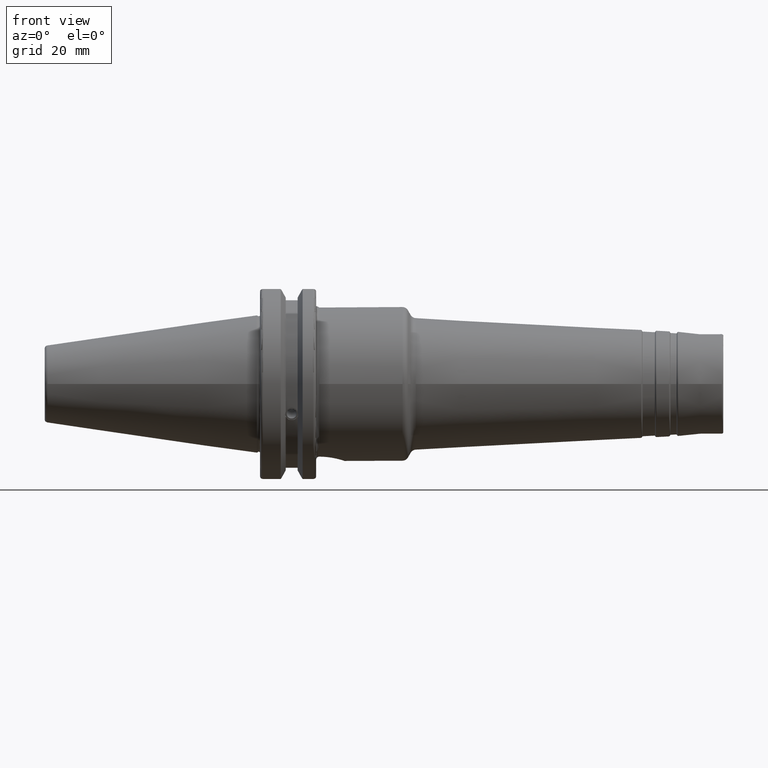
[diagram: clean part render]
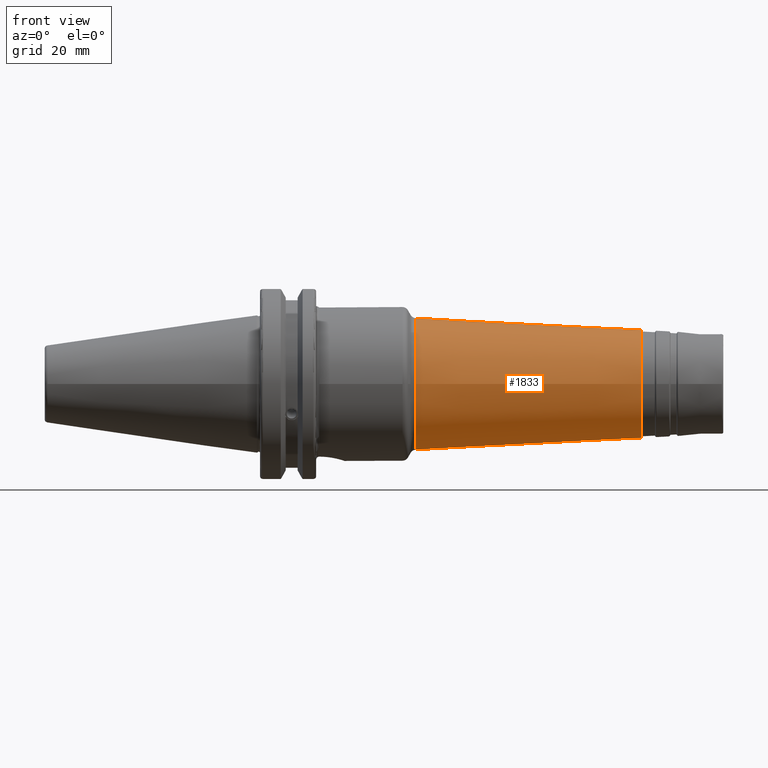
[diagram: same view with one face highlighted and labeled with its STEP entity id]
A machine part, front view. The second image highlights one B-rep face of the part: STEP entity #1833.
In plain terms, the highlighted conical surface has half-angle 3 deg.
Its self-contained STEP definition (entity closure, byte-faithful):
#175=LINE('',#2897,#268);
#268=VECTOR('',#2325,19.3081634099065);
#361=CONICAL_SURFACE('',#2004,19.3081634099065,0.0523598775598298);
#392=FACE_OUTER_BOUND('',#498,.T.);
#498=EDGE_LOOP('',(#1311,#1312,#1313,#1314,#1315,#1316));
#643=CIRCLE('',#2002,17.387635362879);
#644=CIRCLE('',#2003,17.387635362879);
#645=CIRCLE('',#2005,21.1839457168278);
#646=CIRCLE('',#2006,21.1839457168278);
#762=VERTEX_POINT('',#2890);
#763=VERTEX_POINT('',#2892);
#764=VERTEX_POINT('',#2896);
#765=VERTEX_POINT('',#2898);
#971=EDGE_CURVE('',#762,#763,#643,.T.);
#972=EDGE_CURVE('',#763,#762,#644,.T.);
#973=EDGE_CURVE('',#763,#764,#175,.T.);
#974=EDGE_CURVE('',#765,#764,#645,.T.);
#975=EDGE_CURVE('',#764,#765,#646,.T.);
#1311=ORIENTED_EDGE('',*,*,#972,.F.);
#1312=ORIENTED_EDGE('',*,*,#973,.T.);
#1313=ORIENTED_EDGE('',*,*,#974,.F.);
#1314=ORIENTED_EDGE('',*,*,#975,.F.);
#1315=ORIENTED_EDGE('',*,*,#973,.F.);
#1316=ORIENTED_EDGE('',*,*,#971,.F.);
#1833=ADVANCED_FACE('',(#392),#361,.T.);
#2002=AXIS2_PLACEMENT_3D('',#2893,#2319,#2320);
#2003=AXIS2_PLACEMENT_3D('',#2894,#2321,#2322);
#2004=AXIS2_PLACEMENT_3D('',#2895,#2323,#2324);
#2005=AXIS2_PLACEMENT_3D('',#2899,#2326,#2327);
#2006=AXIS2_PLACEMENT_3D('',#2900,#2328,#2329);
#2319=DIRECTION('center_axis',(1.,0.,0.));
#2320=DIRECTION('ref_axis',(0.,-1.,3.06161699786838E-17));
#2321=DIRECTION('center_axis',(1.,0.,0.));
#2322=DIRECTION('ref_axis',(0.,-1.,3.06161699786838E-17));
#2323=DIRECTION('center_axis',(-1.,0.,0.));
#2324=DIRECTION('ref_axis',(0.,1.,0.));
#2325=DIRECTION('',(-0.998629534754574,-0.0523359562429438,-6.40930612932371E-18));
#2326=DIRECTION('center_axis',(-1.,0.,0.));
#2327=DIRECTION('ref_axis',(0.,-1.,3.06161699786838E-17));
#2328=DIRECTION('center_axis',(-1.,0.,0.));
#2329=DIRECTION('ref_axis',(0.,-1.,3.06161699786838E-17));
#2890=CARTESIAN_POINT('',(123.522339968181,-2.12937119918911E-15,17.387635362879));
#2892=CARTESIAN_POINT('',(123.522339968181,-17.387635362879,-2.12937119918911E-15));
#2893=CARTESIAN_POINT('Origin',(123.522339968181,0.,-2.66171399898638E-15));
#2894=CARTESIAN_POINT('Origin',(123.522339968181,0.,-2.66171399898638E-15));
#2895=CARTESIAN_POINT('Origin',(86.8764817902328,0.,0.));
#2896=CARTESIAN_POINT('',(51.0844231954446,-21.1839457168278,-2.59428513154245E-15));
#2897=CARTESIAN_POINT('',(86.8764817902328,-19.3081634099065,-2.36456805173561E-15));
#2898=CARTESIAN_POINT('',(51.0844231954446,-2.59428513154245E-15,21.1839457168278));
#2899=CARTESIAN_POINT('Origin',(51.0844231954446,0.,-3.24285641442806E-15));
#2900=CARTESIAN_POINT('Origin',(51.0844231954446,0.,-3.24285641442806E-15));